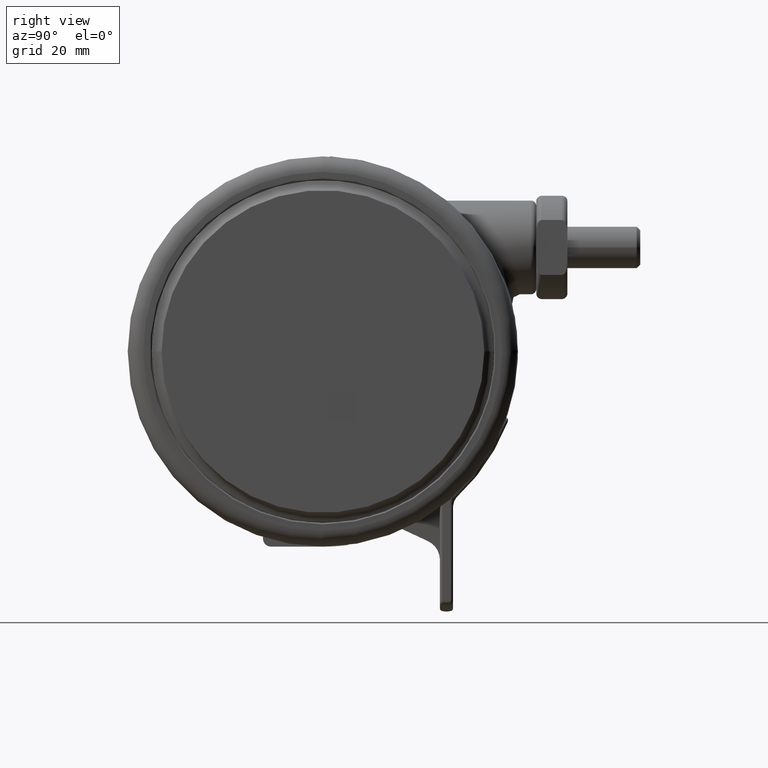
[diagram: clean part render]
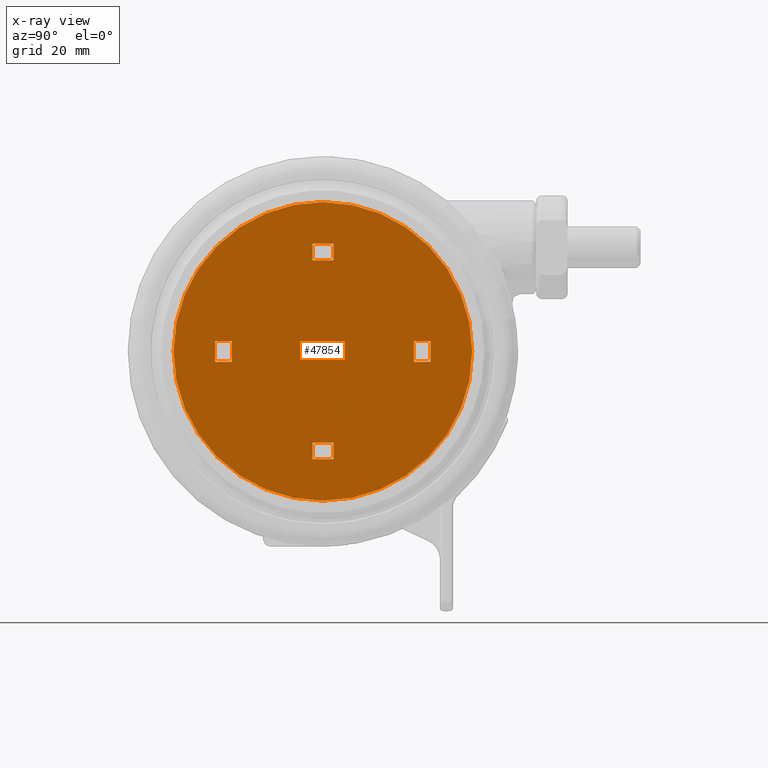
[diagram: x-ray — body ghosted, one internal face saturated and labeled with its STEP entity id]
A machine part, right view, then the same camera in x-ray: the body is ghosted and one INTERNAL B-rep face — a face not visible from any outside direction — is saturated and labeled: STEP entity #47854.
In plain terms, the highlighted planar face has unit normal (1, 0, 0).
Its self-contained STEP definition (entity closure, byte-faithful):
#118 = VECTOR ( 'NONE', #689, 1000.000000000000000 ) ;
#144 = CARTESIAN_POINT ( 'NONE',  ( -19.69999999999999900, 1.999999999999934900, -1.499999999999994400 ) ) ;
#689 = DIRECTION ( 'NONE',  ( 1.047444401652940200E-014, -1.000000000000000000, -0.0000000000000000000 ) ) ;
#1271 = LINE ( 'NONE', #19264, #118 ) ;
#1328 = EDGE_CURVE ( 'NONE', #25977, #38898, #34060, .T. ) ;
#1512 = VECTOR ( 'NONE', #24012, 1000.000000000000000 ) ;
#1633 = LINE ( 'NONE', #4549, #29094 ) ;
#1656 = EDGE_CURVE ( 'NONE', #46387, #47183, #1271, .T. ) ;
#2495 = LINE ( 'NONE', #144, #41102 ) ;
#2862 = EDGE_CURVE ( 'NONE', #46455, #23909, #7603, .T. ) ;
#3192 = DIRECTION ( 'NONE',  ( -3.614007241618350200E-016, -1.000000000000000000, -0.0000000000000000000 ) ) ;
#3478 = EDGE_CURVE ( 'NONE', #46455, #30951, #18020, .T. ) ;
#3887 = DIRECTION ( 'NONE',  ( 1.000000000000000000, 3.130080614681300600E-015, 0.0000000000000000000 ) ) ;
#4294 = CARTESIAN_POINT ( 'NONE',  ( 20.69999999999999900, 2.000000000000214900, -1.499999999999994400 ) ) ;
#4549 = CARTESIAN_POINT ( 'NONE',  ( 19.69999999999999900, -1.999999999999794800, -1.499999999999994400 ) ) ;
#4572 = EDGE_LOOP ( 'NONE', ( #21627, #21459, #41058, #27855 ) ) ;
#5227 = CARTESIAN_POINT ( 'NONE',  ( 0.0000000000000000000, 0.0000000000000000000, -1.499999999999994400 ) ) ;
#5543 = FACE_BOUND ( 'NONE', #45997, .T. ) ;
#6707 = FACE_BOUND ( 'NONE', #4572, .T. ) ;
#7245 = EDGE_CURVE ( 'NONE', #34661, #27510, #38360, .T. ) ;
#7603 = LINE ( 'NONE', #31571, #15150 ) ;
#7684 = EDGE_CURVE ( 'NONE', #44691, #35800, #33083, .T. ) ;
#7726 = EDGE_CURVE ( 'NONE', #42755, #23909, #41840, .T. ) ;
#7819 = ORIENTED_EDGE ( 'NONE', *, *, #16709, .F. ) ;
#8247 = ORIENTED_EDGE ( 'NONE', *, *, #9406, .F. ) ;
#8290 = ORIENTED_EDGE ( 'NONE', *, *, #7245, .T. ) ;
#8860 = DIRECTION ( 'NONE',  ( -1.000000000000000000, -0.0000000000000000000, -0.0000000000000000000 ) ) ;
#8989 = DIRECTION ( 'NONE',  ( 1.000000000000000000, 0.0000000000000000000, 0.0000000000000000000 ) ) ;
#9406 = EDGE_CURVE ( 'NONE', #24032, #48073, #2495, .T. ) ;
#9689 = DIRECTION ( 'NONE',  ( -1.000000000000000000, -0.0000000000000000000, -0.0000000000000000000 ) ) ;
#10461 = ORIENTED_EDGE ( 'NONE', *, *, #22614, .F. ) ;
#11545 = CARTESIAN_POINT ( 'NONE',  ( -17.50000000000000000, 1.999999999999940300, -1.499999999999994400 ) ) ;
#12002 = VECTOR ( 'NONE', #45516, 1000.000000000000000 ) ;
#12619 = VECTOR ( 'NONE', #3192, 1000.000000000000000 ) ;
#12979 = VERTEX_POINT ( 'NONE', #42132 ) ;
#13193 = CARTESIAN_POINT ( 'NONE',  ( 2.000000000000000000, 17.50000000000000000, -1.499999999999994400 ) ) ;
#13321 = ORIENTED_EDGE ( 'NONE', *, *, #47998, .T. ) ;
#13920 = ORIENTED_EDGE ( 'NONE', *, *, #1328, .T. ) ;
#14882 = CARTESIAN_POINT ( 'NONE',  ( -20.69999999999999900, 1.999999999999930300, -1.499999999999994400 ) ) ;
#15150 = VECTOR ( 'NONE', #46468, 1000.000000000000000 ) ;
#15262 = CARTESIAN_POINT ( 'NONE',  ( 20.69999999999999900, 2.000000000000214900, -1.499999999999994400 ) ) ;
#15388 = DIRECTION ( 'NONE',  ( -0.0000000000000000000, -0.0000000000000000000, -1.000000000000000000 ) ) ;
#15450 = FACE_OUTER_BOUND ( 'NONE', #36815, .T. ) ;
#15603 = DIRECTION ( 'NONE',  ( 3.491481338843135300E-015, -1.000000000000000000, -0.0000000000000000000 ) ) ;
#15967 = VECTOR ( 'NONE', #19687, 1000.000000000000000 ) ;
#16210 = AXIS2_PLACEMENT_3D ( 'NONE', #5227, #31380, #8989 ) ;
#16600 = FACE_BOUND ( 'NONE', #17819, .T. ) ;
#16709 = EDGE_CURVE ( 'NONE', #25977, #30436, #42494, .T. ) ;
#16734 = ORIENTED_EDGE ( 'NONE', *, *, #47213, .F. ) ;
#16811 = VECTOR ( 'NONE', #8860, 1000.000000000000000 ) ;
#16888 = DIRECTION ( 'NONE',  ( 0.0000000000000000000, 0.0000000000000000000, 1.000000000000000000 ) ) ;
#17120 = LINE ( 'NONE', #34765, #15967 ) ;
#17819 = EDGE_LOOP ( 'NONE', ( #7819, #13920, #30629, #13321 ) ) ;
#17871 = CARTESIAN_POINT ( 'NONE',  ( -28.69999999999999900, 3.563722185518798200E-015, -1.499999999999994400 ) ) ;
#18020 = LINE ( 'NONE', #23678, #16811 ) ;
#18027 = CARTESIAN_POINT ( 'NONE',  ( 2.000000000000000000, 19.69999999999999900, -1.499999999999994400 ) ) ;
#18281 = VERTEX_POINT ( 'NONE', #33110 ) ;
#18463 = VECTOR ( 'NONE', #34118, 1000.000000000000000 ) ;
#18548 = VECTOR ( 'NONE', #41523, 1000.000000000000000 ) ;
#19108 = CARTESIAN_POINT ( 'NONE',  ( -2.000000000000000000, 17.50000000000000000, -1.499999999999994400 ) ) ;
#19264 = CARTESIAN_POINT ( 'NONE',  ( 17.50000000000000000, -1.999999999999820100, -1.499999999999994400 ) ) ;
#19528 = EDGE_CURVE ( 'NONE', #27478, #38898, #46915, .T. ) ;
#19687 = DIRECTION ( 'NONE',  ( 3.614007241618350200E-016, 1.000000000000000000, 0.0000000000000000000 ) ) ;
#20217 = DIRECTION ( 'NONE',  ( 3.614007241618350200E-016, 1.000000000000000000, 0.0000000000000000000 ) ) ;
#20689 = CARTESIAN_POINT ( 'NONE',  ( -2.000000000000000000, -17.50000000000000000, -1.499999999999994400 ) ) ;
#20702 = LINE ( 'NONE', #40132, #29488 ) ;
#21344 = LINE ( 'NONE', #27650, #1512 ) ;
#21459 = ORIENTED_EDGE ( 'NONE', *, *, #7726, .T. ) ;
#21460 = DIRECTION ( 'NONE',  ( 1.000000000000000000, -0.0000000000000000000, -0.0000000000000000000 ) ) ;
#21594 = ORIENTED_EDGE ( 'NONE', *, *, #28050, .T. ) ;
#21627 = ORIENTED_EDGE ( 'NONE', *, *, #33146, .F. ) ;
#21967 = CARTESIAN_POINT ( 'NONE',  ( 2.000000000000000000, -17.50000000000000000, -1.499999999999994400 ) ) ;
#22111 = EDGE_LOOP ( 'NONE', ( #16734, #21594, #8247, #37474 ) ) ;
#22614 = EDGE_CURVE ( 'NONE', #46387, #27510, #38442, .T. ) ;
#23132 = DIRECTION ( 'NONE',  ( -1.000000000000000000, -1.011304329236755900E-014, -0.0000000000000000000 ) ) ;
#23678 = CARTESIAN_POINT ( 'NONE',  ( -2.000000000000000000, -17.50000000000000000, -1.499999999999994400 ) ) ;
#23909 = VERTEX_POINT ( 'NONE', #39573 ) ;
#24012 = DIRECTION ( 'NONE',  ( -1.000000000000000000, -3.130080614681300600E-015, -0.0000000000000000000 ) ) ;
#24032 = VERTEX_POINT ( 'NONE', #14882 ) ;
#24076 = CARTESIAN_POINT ( 'NONE',  ( 28.69999999999999900, 0.0000000000000000000, -1.499999999999994400 ) ) ;
#24535 = CARTESIAN_POINT ( 'NONE',  ( -2.000000000000000000, 20.69999999999999900, -1.499999999999994400 ) ) ;
#24629 = CIRCLE ( 'NONE', #16210, 28.69999999999999900 ) ;
#25306 = CARTESIAN_POINT ( 'NONE',  ( -2.000000000000000000, 20.69999999999999900, -1.499999999999994400 ) ) ;
#25394 = FACE_BOUND ( 'NONE', #22111, .T. ) ;
#25977 = VERTEX_POINT ( 'NONE', #33690 ) ;
#27478 = VERTEX_POINT ( 'NONE', #19108 ) ;
#27508 = CARTESIAN_POINT ( 'NONE',  ( 20.69999999999999900, -1.999999999999784800, -1.499999999999994400 ) ) ;
#27510 = VERTEX_POINT ( 'NONE', #4294 ) ;
#27650 = CARTESIAN_POINT ( 'NONE',  ( -19.69999999999999900, -2.000000000000065300, -1.499999999999994400 ) ) ;
#27855 = ORIENTED_EDGE ( 'NONE', *, *, #3478, .T. ) ;
#28050 = EDGE_CURVE ( 'NONE', #18281, #48073, #28079, .T. ) ;
#28079 = LINE ( 'NONE', #11545, #46825 ) ;
#29094 = VECTOR ( 'NONE', #23132, 1000.000000000000000 ) ;
#29488 = VECTOR ( 'NONE', #21460, 1000.000000000000000 ) ;
#29613 = EDGE_CURVE ( 'NONE', #34661, #47183, #1633, .T. ) ;
#30436 = VERTEX_POINT ( 'NONE', #13193 ) ;
#30505 = ORIENTED_EDGE ( 'NONE', *, *, #7684, .T. ) ;
#30534 = AXIS2_PLACEMENT_3D ( 'NONE', #39315, #16888, #43101 ) ;
#30539 = DIRECTION ( 'NONE',  ( -3.491481338843135300E-015, 1.000000000000000000, -0.0000000000000000000 ) ) ;
#30629 = ORIENTED_EDGE ( 'NONE', *, *, #19528, .F. ) ;
#30951 = VERTEX_POINT ( 'NONE', #20689 ) ;
#31380 = DIRECTION ( 'NONE',  ( -0.0000000000000000000, -0.0000000000000000000, -1.000000000000000000 ) ) ;
#31571 = CARTESIAN_POINT ( 'NONE',  ( 2.000000000000000000, -19.69999999999999900, -1.499999999999994400 ) ) ;
#31853 = PLANE ( 'NONE',  #30534 ) ;
#32177 = ORIENTED_EDGE ( 'NONE', *, *, #42633, .T. ) ;
#32873 = VECTOR ( 'NONE', #9689, 1000.000000000000000 ) ;
#33083 = CIRCLE ( 'NONE', #33223, 28.69999999999999900 ) ;
#33110 = CARTESIAN_POINT ( 'NONE',  ( -17.50000000000000000, -2.000000000000060000, -1.499999999999994400 ) ) ;
#33146 = EDGE_CURVE ( 'NONE', #42755, #30951, #17120, .T. ) ;
#33223 = AXIS2_PLACEMENT_3D ( 'NONE', #37812, #15388, #41566 ) ;
#33690 = CARTESIAN_POINT ( 'NONE',  ( 2.000000000000000000, 20.69999999999999900, -1.499999999999994400 ) ) ;
#34060 = LINE ( 'NONE', #24535, #32873 ) ;
#34118 = DIRECTION ( 'NONE',  ( -1.047444401652940200E-014, 1.000000000000000000, -0.0000000000000000000 ) ) ;
#34285 = CARTESIAN_POINT ( 'NONE',  ( -20.69999999999999900, -2.000000000000069700, -1.499999999999994400 ) ) ;
#34661 = VERTEX_POINT ( 'NONE', #27508 ) ;
#34765 = CARTESIAN_POINT ( 'NONE',  ( -2.000000000000000000, -19.69999999999999900, -1.499999999999994400 ) ) ;
#35800 = VERTEX_POINT ( 'NONE', #17871 ) ;
#36815 = EDGE_LOOP ( 'NONE', ( #30505, #32177 ) ) ;
#37474 = ORIENTED_EDGE ( 'NONE', *, *, #43009, .T. ) ;
#37812 = CARTESIAN_POINT ( 'NONE',  ( 0.0000000000000000000, 0.0000000000000000000, -1.499999999999994400 ) ) ;
#37965 = CARTESIAN_POINT ( 'NONE',  ( 2.000000000000000000, -20.69999999999999900, -1.499999999999994400 ) ) ;
#38060 = LINE ( 'NONE', #34285, #46875 ) ;
#38103 = VECTOR ( 'NONE', #20217, 1000.000000000000000 ) ;
#38360 = LINE ( 'NONE', #15262, #18463 ) ;
#38442 = LINE ( 'NONE', #45160, #18548 ) ;
#38898 = VERTEX_POINT ( 'NONE', #25306 ) ;
#39315 = CARTESIAN_POINT ( 'NONE',  ( 0.0000000000000000000, 0.0000000000000000000, -1.499999999999994400 ) ) ;
#39573 = CARTESIAN_POINT ( 'NONE',  ( 2.000000000000000000, -20.69999999999999900, -1.499999999999994400 ) ) ;
#40132 = CARTESIAN_POINT ( 'NONE',  ( 2.000000000000000000, 17.50000000000000000, -1.499999999999994400 ) ) ;
#41058 = ORIENTED_EDGE ( 'NONE', *, *, #2862, .F. ) ;
#41102 = VECTOR ( 'NONE', #3887, 1000.000000000000000 ) ;
#41523 = DIRECTION ( 'NONE',  ( 1.000000000000000000, 1.011304329236755900E-014, 0.0000000000000000000 ) ) ;
#41566 = DIRECTION ( 'NONE',  ( 1.000000000000000000, 0.0000000000000000000, 0.0000000000000000000 ) ) ;
#41840 = LINE ( 'NONE', #37965, #12002 ) ;
#42132 = CARTESIAN_POINT ( 'NONE',  ( -20.69999999999999900, -2.000000000000069700, -1.499999999999994400 ) ) ;
#42494 = LINE ( 'NONE', #18027, #12619 ) ;
#42537 = CARTESIAN_POINT ( 'NONE',  ( 17.50000000000000000, -1.999999999999820100, -1.499999999999994400 ) ) ;
#42633 = EDGE_CURVE ( 'NONE', #35800, #44691, #24629, .T. ) ;
#42649 = CARTESIAN_POINT ( 'NONE',  ( -2.000000000000000000, 19.69999999999999900, -1.499999999999994400 ) ) ;
#42755 = VERTEX_POINT ( 'NONE', #43439 ) ;
#43009 = EDGE_CURVE ( 'NONE', #24032, #12979, #38060, .T. ) ;
#43101 = DIRECTION ( 'NONE',  ( 1.000000000000000000, 0.0000000000000000000, 0.0000000000000000000 ) ) ;
#43439 = CARTESIAN_POINT ( 'NONE',  ( -2.000000000000000000, -20.69999999999999900, -1.499999999999994400 ) ) ;
#44691 = VERTEX_POINT ( 'NONE', #24076 ) ;
#45160 = CARTESIAN_POINT ( 'NONE',  ( 19.69999999999999900, 2.000000000000205200, -1.499999999999994400 ) ) ;
#45516 = DIRECTION ( 'NONE',  ( 1.000000000000000000, -0.0000000000000000000, -0.0000000000000000000 ) ) ;
#45956 = ORIENTED_EDGE ( 'NONE', *, *, #1656, .T. ) ;
#45997 = EDGE_LOOP ( 'NONE', ( #10461, #45956, #46080, #8290 ) ) ;
#46080 = ORIENTED_EDGE ( 'NONE', *, *, #29613, .F. ) ;
#46387 = VERTEX_POINT ( 'NONE', #47721 ) ;
#46455 = VERTEX_POINT ( 'NONE', #21967 ) ;
#46468 = DIRECTION ( 'NONE',  ( -3.614007241618350200E-016, -1.000000000000000000, -0.0000000000000000000 ) ) ;
#46825 = VECTOR ( 'NONE', #30539, 1000.000000000000000 ) ;
#46875 = VECTOR ( 'NONE', #15603, 1000.000000000000000 ) ;
#46915 = LINE ( 'NONE', #42649, #38103 ) ;
#47183 = VERTEX_POINT ( 'NONE', #42537 ) ;
#47213 = EDGE_CURVE ( 'NONE', #18281, #12979, #21344, .T. ) ;
#47721 = CARTESIAN_POINT ( 'NONE',  ( 17.50000000000000000, 2.000000000000179900, -1.499999999999994400 ) ) ;
#47854 = ADVANCED_FACE ( 'NONE', ( #15450, #6707, #16600, #25394, #5543 ), #31853, .F. ) ;
#47998 = EDGE_CURVE ( 'NONE', #27478, #30436, #20702, .T. ) ;
#48073 = VERTEX_POINT ( 'NONE', #48187 ) ;
#48187 = CARTESIAN_POINT ( 'NONE',  ( -17.50000000000000000, 1.999999999999940300, -1.499999999999994400 ) ) ;